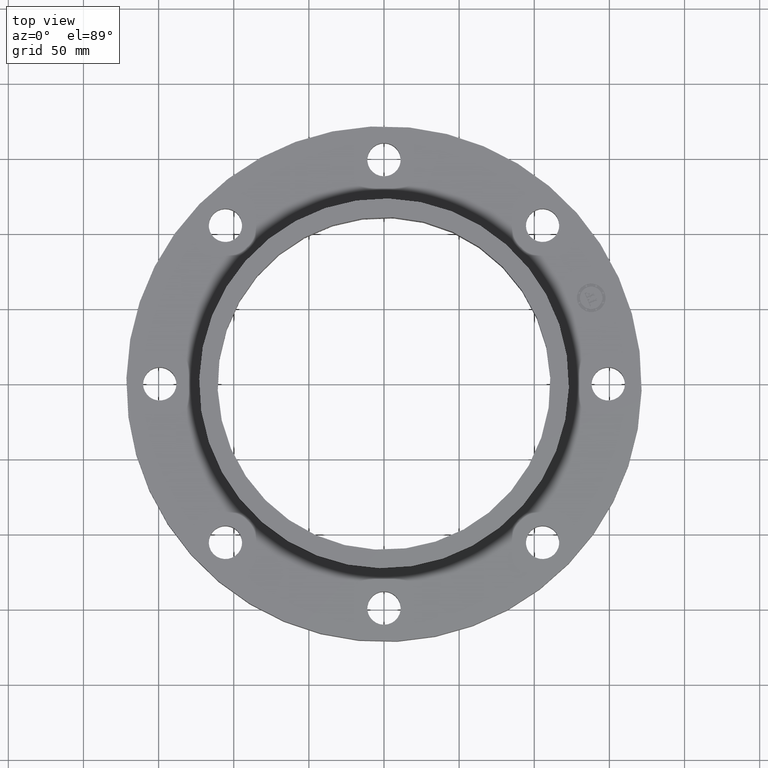
[diagram: clean part render]
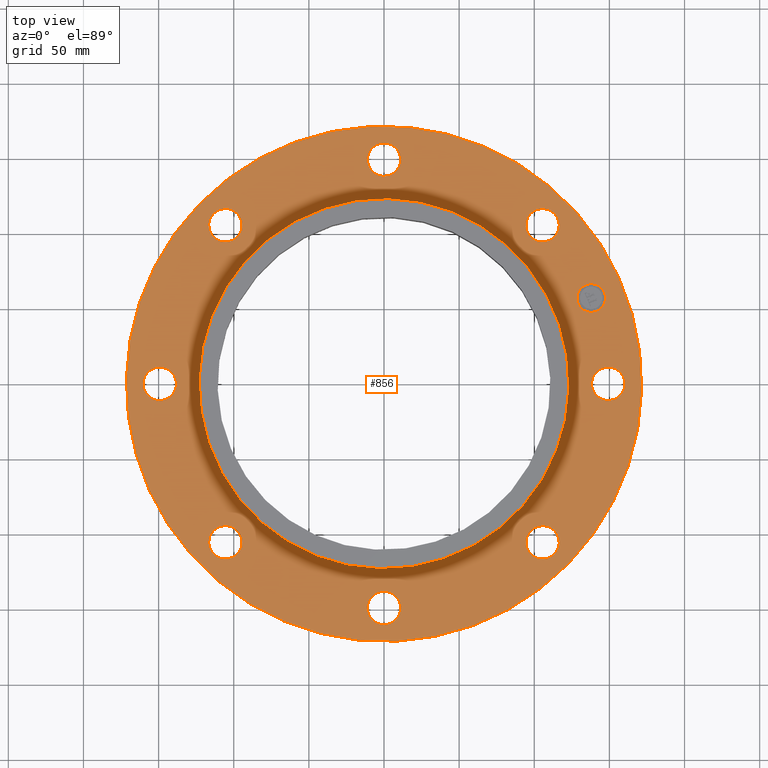
[diagram: same view with one face highlighted and labeled with its STEP entity id]
A machine part, top view. The second image highlights one B-rep face of the part: STEP entity #856.
In plain terms, the highlighted planar face has unit normal (0, 0, 1).
Its self-contained STEP definition (entity closure, byte-faithful):
#65=AXIS2_PLACEMENT_3D('Circle Axis2P3D',#63,#64,$) ;
#82=AXIS2_PLACEMENT_3D('Circle Axis2P3D',#80,#81,$) ;
#108=AXIS2_PLACEMENT_3D('Circle Axis2P3D',#106,#107,$) ;
#134=AXIS2_PLACEMENT_3D('Circle Axis2P3D',#132,#133,$) ;
#326=AXIS2_PLACEMENT_3D('Circle Axis2P3D',#324,#325,$) ;
#338=AXIS2_PLACEMENT_3D('Circle Axis2P3D',#336,#337,$) ;
#513=AXIS2_PLACEMENT_3D('Circle Axis2P3D',#511,#512,$) ;
#525=AXIS2_PLACEMENT_3D('Circle Axis2P3D',#523,#524,$) ;
#556=AXIS2_PLACEMENT_3D('Circle Axis2P3D',#554,#555,$) ;
#568=AXIS2_PLACEMENT_3D('Circle Axis2P3D',#566,#567,$) ;
#599=AXIS2_PLACEMENT_3D('Circle Axis2P3D',#597,#598,$) ;
#611=AXIS2_PLACEMENT_3D('Circle Axis2P3D',#609,#610,$) ;
#642=AXIS2_PLACEMENT_3D('Circle Axis2P3D',#640,#641,$) ;
#654=AXIS2_PLACEMENT_3D('Circle Axis2P3D',#652,#653,$) ;
#685=AXIS2_PLACEMENT_3D('Circle Axis2P3D',#683,#684,$) ;
#697=AXIS2_PLACEMENT_3D('Circle Axis2P3D',#695,#696,$) ;
#728=AXIS2_PLACEMENT_3D('Circle Axis2P3D',#726,#727,$) ;
#740=AXIS2_PLACEMENT_3D('Circle Axis2P3D',#738,#739,$) ;
#771=AXIS2_PLACEMENT_3D('Circle Axis2P3D',#769,#770,$) ;
#783=AXIS2_PLACEMENT_3D('Circle Axis2P3D',#781,#782,$) ;
#796=AXIS2_PLACEMENT_3D('Plane Axis2P3D',#793,#794,#795) ;
#840=AXIS2_PLACEMENT_3D('Circle Axis2P3D',#838,#839,$) ;
#849=AXIS2_PLACEMENT_3D('Circle Axis2P3D',#847,#848,$) ;
#46=CARTESIAN_POINT('Vertex',(5.49105762919,0.20974867314,1.125)) ;
#60=CARTESIAN_POINT('Vertex',(6.25894237085,-0.20974867314,1.125)) ;
#63=CARTESIAN_POINT('Axis2P3D Location',(5.87500000002,0.,1.125)) ;
#80=CARTESIAN_POINT('Axis2P3D Location',(5.87500000002,0.,1.125)) ;
#103=CARTESIAN_POINT('Vertex',(-3.23612238559,5.92368229278,1.125)) ;
#106=CARTESIAN_POINT('Axis2P3D Location',(0.,0.,1.125)) ;
#110=CARTESIAN_POINT('Vertex',(3.23612238559,-5.92368229278,1.125)) ;
#132=CARTESIAN_POINT('Axis2P3D Location',(0.,0.,1.125)) ;
#314=CARTESIAN_POINT('Vertex',(-2.32233730901,4.25100992981,1.125)) ;
#321=CARTESIAN_POINT('Vertex',(2.32233730901,-4.25100992981,1.125)) ;
#324=CARTESIAN_POINT('Axis2P3D Location',(0.,0.,1.125)) ;
#336=CARTESIAN_POINT('Axis2P3D Location',(0.,0.,1.125)) ;
#501=CARTESIAN_POINT('Vertex',(3.73444937637,4.03107879461,1.125)) ;
#508=CARTESIAN_POINT('Vertex',(4.57405530261,4.27742588436,1.125)) ;
#511=CARTESIAN_POINT('Axis2P3D Location',(4.15425233949,4.15425233949,1.125)) ;
#523=CARTESIAN_POINT('Axis2P3D Location',(4.15425233949,4.15425233949,1.125)) ;
#544=CARTESIAN_POINT('Vertex',(-0.20974867314,5.49105762919,1.125)) ;
#551=CARTESIAN_POINT('Vertex',(0.20974867314,6.25894237085,1.125)) ;
#554=CARTESIAN_POINT('Axis2P3D Location',(-7.59224940954E-016,5.87500000002,1.125)) ;
#566=CARTESIAN_POINT('Axis2P3D Location',(-7.59224940954E-016,5.87500000002,1.125)) ;
#587=CARTESIAN_POINT('Vertex',(-4.03107879461,3.73444937637,1.125)) ;
#594=CARTESIAN_POINT('Vertex',(-4.27742588436,4.57405530261,1.125)) ;
#597=CARTESIAN_POINT('Axis2P3D Location',(-4.15425233949,4.15425233949,1.125)) ;
#609=CARTESIAN_POINT('Axis2P3D Location',(-4.15425233949,4.15425233949,1.125)) ;
#630=CARTESIAN_POINT('Vertex',(-5.49105762919,-0.20974867314,1.125)) ;
#637=CARTESIAN_POINT('Vertex',(-6.25894237085,0.20974867314,1.125)) ;
#640=CARTESIAN_POINT('Axis2P3D Location',(-5.87500000002,7.19479994502E-016,1.125)) ;
#652=CARTESIAN_POINT('Axis2P3D Location',(-5.87500000002,7.19479994502E-016,1.125)) ;
#673=CARTESIAN_POINT('Vertex',(-3.73444937637,-4.03107879461,1.125)) ;
#680=CARTESIAN_POINT('Vertex',(-4.57405530261,-4.27742588436,1.125)) ;
#683=CARTESIAN_POINT('Axis2P3D Location',(-4.15425233949,-4.15425233949,1.125)) ;
#695=CARTESIAN_POINT('Axis2P3D Location',(-4.15425233949,-4.15425233949,1.125)) ;
#716=CARTESIAN_POINT('Vertex',(0.20974867314,-5.49105762919,1.125)) ;
#723=CARTESIAN_POINT('Vertex',(-0.20974867314,-6.25894237085,1.125)) ;
#726=CARTESIAN_POINT('Axis2P3D Location',(-1.07921999175E-015,-5.87500000002,1.125)) ;
#738=CARTESIAN_POINT('Axis2P3D Location',(-1.07921999175E-015,-5.87500000002,1.125)) ;
#759=CARTESIAN_POINT('Vertex',(4.03107879461,-3.73444937637,1.125)) ;
#766=CARTESIAN_POINT('Vertex',(4.27742588436,-4.57405530261,1.125)) ;
#769=CARTESIAN_POINT('Axis2P3D Location',(4.15425233949,-4.15425233949,1.125)) ;
#781=CARTESIAN_POINT('Axis2P3D Location',(4.15425233949,-4.15425233949,1.125)) ;
#793=CARTESIAN_POINT('Axis2P3D Location',(0.,4.84400000002,1.125)) ;
#838=CARTESIAN_POINT('Axis2P3D Location',(5.42779225353,2.24826516515,1.125)) ;
#842=CARTESIAN_POINT('Vertex',(5.28428596639,2.59471998985,1.125)) ;
#844=CARTESIAN_POINT('Vertex',(5.57129854066,1.90181034046,1.125)) ;
#847=CARTESIAN_POINT('Axis2P3D Location',(5.42779225353,2.24826516515,1.125)) ;
#64=DIRECTION('Axis2P3D Direction',(0.,-0.,-0.0393700787402)) ;
#81=DIRECTION('Axis2P3D Direction',(0.,-0.,-0.0393700787402)) ;
#107=DIRECTION('Axis2P3D Direction',(0.,0.,0.0393700787402)) ;
#133=DIRECTION('Axis2P3D Direction',(0.,0.,0.0393700787402)) ;
#325=DIRECTION('Axis2P3D Direction',(0.,0.,0.0393700787402)) ;
#337=DIRECTION('Axis2P3D Direction',(0.,0.,0.0393700787402)) ;
#512=DIRECTION('Axis2P3D Direction',(0.,0.,-0.0393700787402)) ;
#524=DIRECTION('Axis2P3D Direction',(0.,0.,-0.0393700787402)) ;
#555=DIRECTION('Axis2P3D Direction',(0.,0.,-0.0393700787402)) ;
#567=DIRECTION('Axis2P3D Direction',(0.,0.,-0.0393700787402)) ;
#598=DIRECTION('Axis2P3D Direction',(0.,0.,-0.0393700787402)) ;
#610=DIRECTION('Axis2P3D Direction',(0.,0.,-0.0393700787402)) ;
#641=DIRECTION('Axis2P3D Direction',(0.,0.,-0.0393700787402)) ;
#653=DIRECTION('Axis2P3D Direction',(0.,0.,-0.0393700787402)) ;
#684=DIRECTION('Axis2P3D Direction',(-0.,0.,-0.0393700787402)) ;
#696=DIRECTION('Axis2P3D Direction',(-0.,0.,-0.0393700787402)) ;
#727=DIRECTION('Axis2P3D Direction',(-0.,0.,-0.0393700787402)) ;
#739=DIRECTION('Axis2P3D Direction',(-0.,0.,-0.0393700787402)) ;
#770=DIRECTION('Axis2P3D Direction',(0.,-0.,-0.0393700787402)) ;
#782=DIRECTION('Axis2P3D Direction',(0.,-0.,-0.0393700787402)) ;
#794=DIRECTION('Axis2P3D Direction',(0.,0.,0.0393700787402)) ;
#795=DIRECTION('Axis2P3D XDirection',(0.0393700787402,0.,0.)) ;
#839=DIRECTION('Axis2P3D Direction',(0.,0.,0.0393700787402)) ;
#848=DIRECTION('Axis2P3D Direction',(0.,0.,0.0393700787402)) ;
#799=ORIENTED_EDGE('',*,*,#112,.T.) ;
#800=ORIENTED_EDGE('',*,*,#136,.T.) ;
#803=ORIENTED_EDGE('',*,*,#84,.F.) ;
#804=ORIENTED_EDGE('',*,*,#67,.F.) ;
#807=ORIENTED_EDGE('',*,*,#340,.F.) ;
#808=ORIENTED_EDGE('',*,*,#328,.F.) ;
#811=ORIENTED_EDGE('',*,*,#515,.F.) ;
#812=ORIENTED_EDGE('',*,*,#527,.F.) ;
#815=ORIENTED_EDGE('',*,*,#558,.F.) ;
#816=ORIENTED_EDGE('',*,*,#570,.F.) ;
#819=ORIENTED_EDGE('',*,*,#601,.F.) ;
#820=ORIENTED_EDGE('',*,*,#613,.F.) ;
#823=ORIENTED_EDGE('',*,*,#644,.F.) ;
#824=ORIENTED_EDGE('',*,*,#656,.F.) ;
#827=ORIENTED_EDGE('',*,*,#687,.F.) ;
#828=ORIENTED_EDGE('',*,*,#699,.F.) ;
#831=ORIENTED_EDGE('',*,*,#730,.F.) ;
#832=ORIENTED_EDGE('',*,*,#742,.F.) ;
#835=ORIENTED_EDGE('',*,*,#773,.F.) ;
#836=ORIENTED_EDGE('',*,*,#785,.F.) ;
#853=ORIENTED_EDGE('',*,*,#846,.F.) ;
#854=ORIENTED_EDGE('',*,*,#851,.F.) ;
#805=FACE_BOUND('',#802,.T.) ;
#809=FACE_BOUND('',#806,.T.) ;
#813=FACE_BOUND('',#810,.T.) ;
#817=FACE_BOUND('',#814,.T.) ;
#821=FACE_BOUND('',#818,.T.) ;
#825=FACE_BOUND('',#822,.T.) ;
#829=FACE_BOUND('',#826,.T.) ;
#833=FACE_BOUND('',#830,.T.) ;
#837=FACE_BOUND('',#834,.T.) ;
#855=FACE_BOUND('',#852,.T.) ;
#856=ADVANCED_FACE('PartBody',(#801,#805,#809,#813,#817,#821,#825,#829,#833,#837,#855),#797,.T.) ;
#66=CIRCLE('generated circle',#65,0.437500000002) ;
#83=CIRCLE('generated circle',#82,0.437500000002) ;
#109=CIRCLE('generated circle',#108,6.75000000003) ;
#135=CIRCLE('generated circle',#134,6.75000000003) ;
#327=CIRCLE('generated circle',#326,4.84400000002) ;
#339=CIRCLE('generated circle',#338,4.84400000002) ;
#514=CIRCLE('generated circle',#513,0.437500000002) ;
#526=CIRCLE('generated circle',#525,0.437500000002) ;
#557=CIRCLE('generated circle',#556,0.437500000002) ;
#569=CIRCLE('generated circle',#568,0.437500000002) ;
#600=CIRCLE('generated circle',#599,0.437500000002) ;
#612=CIRCLE('generated circle',#611,0.437500000002) ;
#643=CIRCLE('generated circle',#642,0.437500000002) ;
#655=CIRCLE('generated circle',#654,0.437500000002) ;
#686=CIRCLE('generated circle',#685,0.437500000002) ;
#698=CIRCLE('generated circle',#697,0.437500000002) ;
#729=CIRCLE('generated circle',#728,0.437500000002) ;
#741=CIRCLE('generated circle',#740,0.437500000002) ;
#772=CIRCLE('generated circle',#771,0.437500000002) ;
#784=CIRCLE('generated circle',#783,0.437500000002) ;
#841=CIRCLE('generated circle',#840,0.375000000002) ;
#850=CIRCLE('generated circle',#849,0.375000000002) ;
#67=EDGE_CURVE('',#61,#47,#66,.F.) ;
#84=EDGE_CURVE('',#47,#61,#83,.F.) ;
#112=EDGE_CURVE('',#111,#104,#109,.T.) ;
#136=EDGE_CURVE('',#104,#111,#135,.T.) ;
#328=EDGE_CURVE('',#322,#315,#327,.T.) ;
#340=EDGE_CURVE('',#315,#322,#339,.T.) ;
#515=EDGE_CURVE('',#509,#502,#514,.F.) ;
#527=EDGE_CURVE('',#502,#509,#526,.F.) ;
#558=EDGE_CURVE('',#552,#545,#557,.F.) ;
#570=EDGE_CURVE('',#545,#552,#569,.F.) ;
#601=EDGE_CURVE('',#595,#588,#600,.F.) ;
#613=EDGE_CURVE('',#588,#595,#612,.F.) ;
#644=EDGE_CURVE('',#638,#631,#643,.F.) ;
#656=EDGE_CURVE('',#631,#638,#655,.F.) ;
#687=EDGE_CURVE('',#681,#674,#686,.F.) ;
#699=EDGE_CURVE('',#674,#681,#698,.F.) ;
#730=EDGE_CURVE('',#724,#717,#729,.F.) ;
#742=EDGE_CURVE('',#717,#724,#741,.F.) ;
#773=EDGE_CURVE('',#767,#760,#772,.F.) ;
#785=EDGE_CURVE('',#760,#767,#784,.F.) ;
#846=EDGE_CURVE('',#843,#845,#841,.T.) ;
#851=EDGE_CURVE('',#845,#843,#850,.T.) ;
#798=EDGE_LOOP('',(#799,#800)) ;
#802=EDGE_LOOP('',(#803,#804)) ;
#806=EDGE_LOOP('',(#807,#808)) ;
#810=EDGE_LOOP('',(#811,#812)) ;
#814=EDGE_LOOP('',(#815,#816)) ;
#818=EDGE_LOOP('',(#819,#820)) ;
#822=EDGE_LOOP('',(#823,#824)) ;
#826=EDGE_LOOP('',(#827,#828)) ;
#830=EDGE_LOOP('',(#831,#832)) ;
#834=EDGE_LOOP('',(#835,#836)) ;
#852=EDGE_LOOP('',(#853,#854)) ;
#801=FACE_OUTER_BOUND('',#798,.T.) ;
#797=PLANE('',#796) ;
#47=VERTEX_POINT('',#46) ;
#61=VERTEX_POINT('',#60) ;
#104=VERTEX_POINT('',#103) ;
#111=VERTEX_POINT('',#110) ;
#315=VERTEX_POINT('',#314) ;
#322=VERTEX_POINT('',#321) ;
#502=VERTEX_POINT('',#501) ;
#509=VERTEX_POINT('',#508) ;
#545=VERTEX_POINT('',#544) ;
#552=VERTEX_POINT('',#551) ;
#588=VERTEX_POINT('',#587) ;
#595=VERTEX_POINT('',#594) ;
#631=VERTEX_POINT('',#630) ;
#638=VERTEX_POINT('',#637) ;
#674=VERTEX_POINT('',#673) ;
#681=VERTEX_POINT('',#680) ;
#717=VERTEX_POINT('',#716) ;
#724=VERTEX_POINT('',#723) ;
#760=VERTEX_POINT('',#759) ;
#767=VERTEX_POINT('',#766) ;
#843=VERTEX_POINT('',#842) ;
#845=VERTEX_POINT('',#844) ;